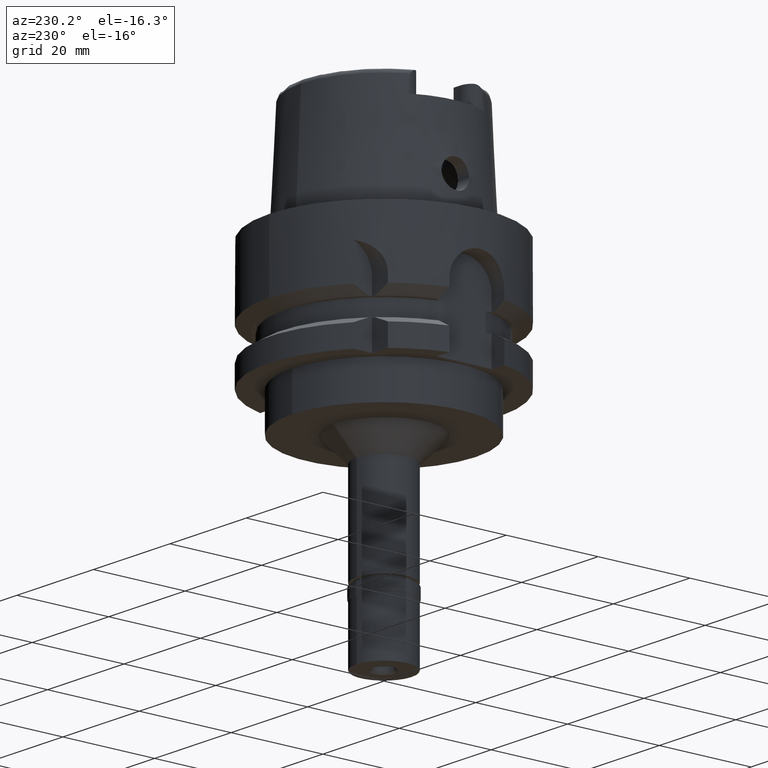
[diagram: clean part render]
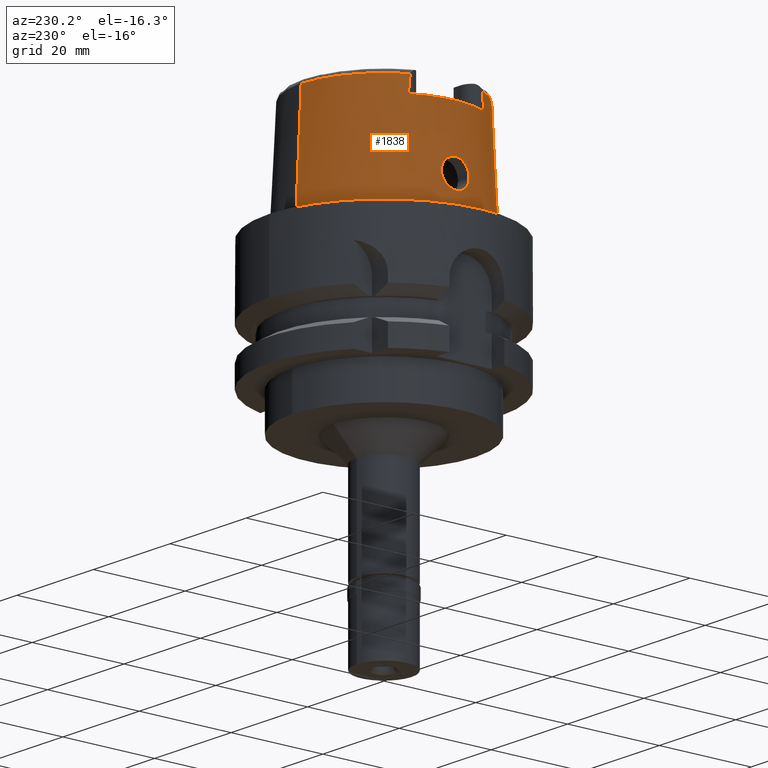
[diagram: same view with one face highlighted and labeled with its STEP entity id]
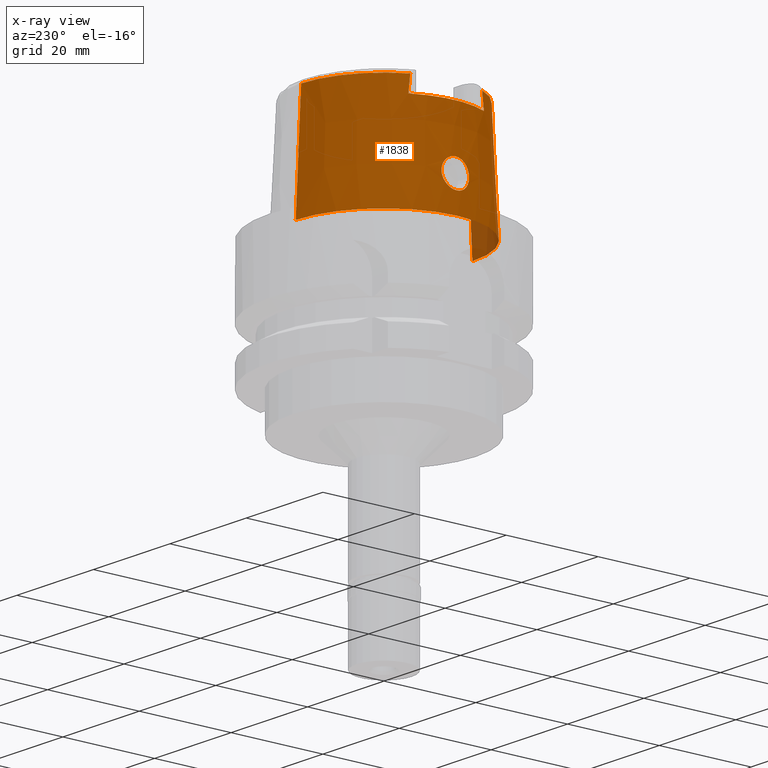
[diagram: x-ray of the same camera — body ghosted, the highlighted face saturated]
A machine part, auxiliary view. The second image highlights one B-rep face of the part: STEP entity #1838.
The next image is the same camera in x-ray: the body ghosted, the highlighted face saturated — about 3% of this face is hidden behind the body in this view.
In plain terms, the highlighted conical surface has half-angle 2.862 deg.
Its self-contained STEP definition (entity closure, byte-faithful):
#75 = CARTESIAN_POINT ( 'NONE',  ( -18.61521165853279314, 3.000504193512372186, 7.890410085220069369 ) ) ;
#148 = CARTESIAN_POINT ( 'NONE',  ( -18.68809610185432390, 2.921615254489645874, 6.711284630870899548 ) ) ;
#173 = EDGE_CURVE ( 'NONE', #1096, #3596, #1031, .T. ) ;
#246 = CARTESIAN_POINT ( 'NONE',  ( -16.26000066025000024, -7.966258492751999043, 22.87044372160000094 ) ) ;
#250 = DIRECTION ( 'NONE',  ( -0.0008255998758095713444, -0.9999996591923644429, 0.0000000000000000000 ) ) ;
#281 = VERTEX_POINT ( 'NONE', #2990 ) ;
#291 = CARTESIAN_POINT ( 'NONE',  ( -16.26000040461999774, 7.876275909827000099, 23.65715615373999725 ) ) ;
#331 = VECTOR ( 'NONE', #1618, 999.9999999999998863 ) ;
#405 = EDGE_CURVE ( 'NONE', #1096, #4775, #3557, .T. ) ;
#447 = CARTESIAN_POINT ( 'NONE',  ( -18.90931523670926850, 1.829648391470870328, 5.090021779530423451 ) ) ;
#450 = CIRCLE ( 'NONE', #4151, 19.24999954279000036 ) ;
#482 = CARTESIAN_POINT ( 'NONE',  ( 0.0000000000000000000, 18.04750486565000145, 24.04993752584000077 ) ) ;
#517 = CARTESIAN_POINT ( 'NONE',  ( -18.99432512546106722, 0.9562426627927177458, 4.649710631550868278 ) ) ;
#553 = CARTESIAN_POINT ( 'NONE',  ( -18.61621094040402369, -2.624791278749426748, 9.004930861501632577 ) ) ;
#558 = EDGE_CURVE ( 'NONE', #4340, #1352, #1783, .T. ) ;
#574 = FACE_OUTER_BOUND ( 'NONE', #3533, .T. ) ;
#579 = CARTESIAN_POINT ( 'NONE',  ( -18.76862302822648587, -2.623082563007824941, 5.991891537509923538 ) ) ;
#672 = B_SPLINE_CURVE_WITH_KNOTS ( 'NONE', 3,
 ( #938, #3648, #2055, #246, #3294, #1711 ),
 .UNSPECIFIED., .F., .F.,
 ( 4, 1, 1, 4 ),
 ( 0.0000000000000000000, 0.3333333333333000081, 0.6666666666667000474, 1.000000000000000000 ),
 .UNSPECIFIED. ) ;
#733 = CARTESIAN_POINT ( 'NONE',  ( -16.25999847872000004, -7.831027617251998585, 24.04990901149999871 ) ) ;
#738 = VERTEX_POINT ( 'NONE', #3095 ) ;
#862 = CARTESIAN_POINT ( 'NONE',  ( -19.02105854828567288, 0.3880979019703043043, 4.518930603039573057 ) ) ;
#868 = DIRECTION ( 'NONE',  ( 0.0000000000000000000, 1.000000000000000000, 0.0000000000000000000 ) ) ;
#883 = CARTESIAN_POINT ( 'NONE',  ( -19.02499995427999835, 7.258966459333998209E-14, 4.500000000000000000 ) ) ;
#927 = CARTESIAN_POINT ( 'NONE',  ( -18.63075387377248404, -2.403612166160960406, 9.338261276467978433 ) ) ;
#933 = CARTESIAN_POINT ( 'NONE',  ( -18.95067016965386486, 1.499015874560043482, 4.872009837907589791 ) ) ;
#938 = CARTESIAN_POINT ( 'NONE',  ( -16.25999962739999916, -8.231834791749999880, 20.50000000000000000 ) ) ;
#1011 = CARTESIAN_POINT ( 'NONE',  ( -18.68636725910725360, -1.513357400969332467, 10.12033624699732925 ) ) ;
#1031 = CIRCLE ( 'NONE', #4751, 18.04750486564999434 ) ;
#1055 = VERTEX_POINT ( 'NONE', #3788 ) ;
#1075 = ORIENTED_EDGE ( 'NONE', *, *, #3857, .T. ) ;
#1095 = ORIENTED_EDGE ( 'NONE', *, *, #173, .T. ) ;
#1096 = VERTEX_POINT ( 'NONE', #1392 ) ;
#1139 = B_SPLINE_CURVE_WITH_KNOTS ( 'NONE', 3,
 ( #883, #3452, #862, #2727, #517, #933, #447, #3531, #4255, #148, #1636, #75, #3146, #2326, #2699, #1655, #3831, #4224, #4301, #4619 ),
 .UNSPECIFIED., .F., .F.,
 ( 4, 2, 2, 2, 2, 2, 2, 2, 2, 4 ),
 ( 0.0000000000000000000, 0.06250000000000000000, 0.1250000000000000000, 0.2500000000000000000, 0.3750000000000000000, 0.5000000000000000000, 0.6250000000000000000, 0.7500000000000000000, 0.8750000000000000000, 1.000000000000000000 ),
 .UNSPECIFIED. ) ;
#1145 = CARTESIAN_POINT ( 'NONE',  ( -16.26000040461999774, 7.831014550392999318, 24.04994510191000145 ) ) ;
#1162 = ORIENTED_EDGE ( 'NONE', *, *, #4547, .T. ) ;
#1273 = DIRECTION ( 'NONE',  ( 0.0000000000000000000, 0.0000000000000000000, 1.000000000000000000 ) ) ;
#1309 = CARTESIAN_POINT ( 'NONE',  ( -18.72500050292000040, 0.0000000000000000000, 10.50000000000000000 ) ) ;
#1328 = EDGE_CURVE ( 'NONE', #3913, #738, #1592, .T. ) ;
#1335 = DIRECTION ( 'NONE',  ( 0.0000000000000000000, 0.0000000000000000000, -1.000000000000000000 ) ) ;
#1349 = DIRECTION ( 'NONE',  ( 0.0000000000000000000, 0.0000000000000000000, -1.000000000000000000 ) ) ;
#1352 = VERTEX_POINT ( 'NONE', #2817 ) ;
#1392 = CARTESIAN_POINT ( 'NONE',  ( 0.0000000000000000000, -18.04750486565000145, 24.04993752584000077 ) ) ;
#1570 = EDGE_LOOP ( 'NONE', ( #1075, #1162 ) ) ;
#1592 = CIRCLE ( 'NONE', #3002, 18.22500141733000589 ) ;
#1618 = DIRECTION ( 'NONE',  ( 0.0000000000000000000, -0.04993752584486958745, -0.9987523434327917338 ) ) ;
#1636 = CARTESIAN_POINT ( 'NONE',  ( -18.65520956760335380, 2.999493005974039228, 7.103833568902708784 ) ) ;
#1648 = CARTESIAN_POINT ( 'NONE',  ( -16.26000040461999774, 7.831014550392999318, 24.04994510191000145 ) ) ;
#1653 = CARTESIAN_POINT ( 'NONE',  ( 0.0000000000000000000, 0.0000000000000000000, 20.50000000000000000 ) ) ;
#1655 = CARTESIAN_POINT ( 'NONE',  ( -18.66606290257130496, 1.847339601377248952, 9.896261648899583818 ) ) ;
#1672 = CARTESIAN_POINT ( 'NONE',  ( -19.00870477311879725, -0.7795657166047459397, 4.576435979198842929 ) ) ;
#1695 = DIRECTION ( 'NONE',  ( 0.0000000000000000000, -1.000000000000000000, 0.0000000000000000000 ) ) ;
#1699 = CARTESIAN_POINT ( 'NONE',  ( -18.65494599480154392, -2.999800631414130780, 7.108060188906529575 ) ) ;
#1711 = CARTESIAN_POINT ( 'NONE',  ( -16.25999847872000004, -7.831027617251998585, 24.04990901149999871 ) ) ;
#1719 = CARTESIAN_POINT ( 'NONE',  ( -18.66617168065118548, -1.845566687270967288, 9.897830871020845578 ) ) ;
#1777 = CARTESIAN_POINT ( 'NONE',  ( -16.26000000000000156, 8.231833128876001382, 20.50000000000000000 ) ) ;
#1783 = LINE ( 'NONE', #4743, #3318 ) ;
#1838 = ADVANCED_FACE ( 'NONE', ( #574, #2810 ), #3157, .T. ) ;
#1868 = CARTESIAN_POINT ( 'NONE',  ( -16.26000158539999774, 8.187979356550998844, 20.89609208375999927 ) ) ;
#1880 = AXIS2_PLACEMENT_3D ( 'NONE', #2062, #1349, #1695 ) ;
#1961 = ORIENTED_EDGE ( 'NONE', *, *, #2191, .F. ) ;
#2055 = CARTESIAN_POINT ( 'NONE',  ( -16.25999997104000272, -8.099879603683000084, 21.68713993014999986 ) ) ;
#2062 = CARTESIAN_POINT ( 'NONE',  ( 0.0000000000000000000, 0.0000000000000000000, 12.02496876291999861 ) ) ;
#2066 = CARTESIAN_POINT ( 'NONE',  ( -18.61534743515779411, -3.000198457004748853, 7.888700898811171314 ) ) ;
#2107 = EDGE_CURVE ( 'NONE', #1352, #4775, #450, .T. ) ;
#2110 = CARTESIAN_POINT ( 'NONE',  ( -18.94979033133833113, -1.507713449375616799, 4.876655439291137206 ) ) ;
#2140 = ORIENTED_EDGE ( 'NONE', *, *, #1328, .T. ) ;
#2191 = EDGE_CURVE ( 'NONE', #3913, #3596, #672, .T. ) ;
#2326 = CARTESIAN_POINT ( 'NONE',  ( -18.61631339318921619, 2.622856991843211638, 9.008393197570976341 ) ) ;
#2438 = CARTESIAN_POINT ( 'NONE',  ( -16.25999962739999916, -8.231834791749999880, 20.50000000000000000 ) ) ;
#2458 = DIRECTION ( 'NONE',  ( -0.8921810005753487705, -0.4516780515061248891, 0.0000000000000000000 ) ) ;
#2478 = CARTESIAN_POINT ( 'NONE',  ( -18.90749156084745053, -1.843026855301739042, 5.100132021064989196 ) ) ;
#2497 = CARTESIAN_POINT ( 'NONE',  ( -19.02499995427610457, -0.3906497570035861178, 4.499999999999798383 ) ) ;
#2542 = CARTESIAN_POINT ( 'NONE',  ( 0.0000000000000000000, 0.0000000000000000000, 24.04993752584000077 ) ) ;
#2699 = CARTESIAN_POINT ( 'NONE',  ( -18.63074150360520775, 2.403748526159015686, 9.337914465138142717 ) ) ;
#2727 = CARTESIAN_POINT ( 'NONE',  ( -19.00562928286402453, 0.7708435234469115382, 4.594181927763025364 ) ) ;
#2788 = CARTESIAN_POINT ( 'NONE',  ( -18.72500050292148543, -0.3930681750101744920, 10.50000000000007638 ) ) ;
#2810 = FACE_BOUND ( 'NONE', #1570, .T. ) ;
#2813 = CARTESIAN_POINT ( 'NONE',  ( -18.71606359552192700, -0.7826442056608654552, 10.42295787620839143 ) ) ;
#2817 = CARTESIAN_POINT ( 'NONE',  ( 0.0000000000000000000, 19.24999954279000036, -4.547473508865000658E-13 ) ) ;
#2836 = EDGE_CURVE ( 'NONE', #3039, #738, #3248, .T. ) ;
#2990 = CARTESIAN_POINT ( 'NONE',  ( -18.72500050292000040, 0.0000000000000000000, 10.50000000000000000 ) ) ;
#3002 = AXIS2_PLACEMENT_3D ( 'NONE', #1653, #1335, #2458 ) ;
#3039 = VERTEX_POINT ( 'NONE', #1648 ) ;
#3095 = CARTESIAN_POINT ( 'NONE',  ( -16.26000000000000156, 8.231833128876001382, 20.50000000000000000 ) ) ;
#3146 = CARTESIAN_POINT ( 'NONE',  ( -18.60835901575721962, 2.923418430868722773, 8.279880613901511310 ) ) ;
#3157 = CONICAL_SURFACE ( 'NONE', #1880, 18.64875220421999913, 0.04995830450907576964 ) ;
#3200 = ORIENTED_EDGE ( 'NONE', *, *, #2836, .F. ) ;
#3221 = DIRECTION ( 'NONE',  ( 0.0000000000000000000, 0.04993752584486958745, -0.9987523434327917338 ) ) ;
#3230 = CARTESIAN_POINT ( 'NONE',  ( -18.60838970063828413, -2.924199547067774851, 8.276757430511484159 ) ) ;
#3248 = B_SPLINE_CURVE_WITH_KNOTS ( 'NONE', 3,
 ( #1145, #291, #4508, #4134, #1868, #1777 ),
 .UNSPECIFIED., .F., .F.,
 ( 4, 1, 1, 4 ),
 ( 0.0000000000000000000, 0.3333333333333000081, 0.6666666666667000474, 1.000000000000000000 ),
 .UNSPECIFIED. ) ;
#3294 = CARTESIAN_POINT ( 'NONE',  ( -16.25999847872000004, -7.876284608627000416, 23.65715736873999830 ) ) ;
#3318 = VECTOR ( 'NONE', #3221, 999.9999999999998863 ) ;
#3452 = CARTESIAN_POINT ( 'NONE',  ( -19.02499995427610457, 0.1944838372833270768, 4.499999999999798383 ) ) ;
#3531 = CARTESIAN_POINT ( 'NONE',  ( -18.81845342333462057, 2.391666453637501633, 5.646118425473034996 ) ) ;
#3533 = EDGE_LOOP ( 'NONE', ( #3200, #3773, #4101, #3585, #3851, #1095, #1961, #2140 ) ) ;
#3553 = DIRECTION ( 'NONE',  ( -0.9009556354130529021, 0.4339112155930774928, 0.0000000000000000000 ) ) ;
#3557 = LINE ( 'NONE', #4697, #331 ) ;
#3585 = ORIENTED_EDGE ( 'NONE', *, *, #2107, .T. ) ;
#3596 = VERTEX_POINT ( 'NONE', #733 ) ;
#3634 = DIRECTION ( 'NONE',  ( 0.0000000000000000000, 0.0000000000000000000, -1.000000000000000000 ) ) ;
#3648 = CARTESIAN_POINT ( 'NONE',  ( -16.25999962739999916, -8.187990026059001281, 20.89607519730999741 ) ) ;
#3697 = B_SPLINE_CURVE_WITH_KNOTS ( 'NONE', 3,
 ( #1309, #2788, #2813, #1011, #1719, #927, #553, #3230, #2066, #1699, #4781, #579, #3964, #2478, #2110, #1672, #2497, #4711 ),
 .UNSPECIFIED., .F., .F.,
 ( 4, 2, 2, 2, 2, 2, 2, 2, 4 ),
 ( 0.0000000000000000000, 0.1250000000000001110, 0.2500000000000002220, 0.3750000000000003331, 0.5000000000000004441, 0.6250000000000003331, 0.7500000000000002220, 0.8750000000000001110, 1.000000000000000000 ),
 .UNSPECIFIED. ) ;
#3773 = ORIENTED_EDGE ( 'NONE', *, *, #3844, .T. ) ;
#3788 = CARTESIAN_POINT ( 'NONE',  ( -19.02499995427999835, 7.258966459333998209E-14, 4.500000000000000000 ) ) ;
#3831 = CARTESIAN_POINT ( 'NONE',  ( -18.68623128378096609, 1.515970932754483025, 10.11879753375873037 ) ) ;
#3844 = EDGE_CURVE ( 'NONE', #3039, #4340, #4704, .T. ) ;
#3851 = ORIENTED_EDGE ( 'NONE', *, *, #405, .F. ) ;
#3857 = EDGE_CURVE ( 'NONE', #1055, #281, #1139, .T. ) ;
#3913 = VERTEX_POINT ( 'NONE', #2438 ) ;
#3964 = CARTESIAN_POINT ( 'NONE',  ( -18.81630333429857771, -2.402769269209611647, 5.660385142971150252 ) ) ;
#4101 = ORIENTED_EDGE ( 'NONE', *, *, #558, .T. ) ;
#4134 = CARTESIAN_POINT ( 'NONE',  ( -16.25999931409999988, 8.099893749601998039, 21.68718078638000080 ) ) ;
#4151 = AXIS2_PLACEMENT_3D ( 'NONE', #4261, #1273, #868 ) ;
#4224 = CARTESIAN_POINT ( 'NONE',  ( -18.71598416553824862, 0.7853924271573787808, 10.42221850693087681 ) ) ;
#4255 = CARTESIAN_POINT ( 'NONE',  ( -18.77055619783420326, 2.614874352756201503, 5.976803230990258342 ) ) ;
#4261 = CARTESIAN_POINT ( 'NONE',  ( 0.0000000000000000000, 0.0000000000000000000, -4.547473508865000658E-13 ) ) ;
#4277 = DIRECTION ( 'NONE',  ( 0.0000000000000000000, 0.0000000000000000000, -1.000000000000000000 ) ) ;
#4301 = CARTESIAN_POINT ( 'NONE',  ( -18.72500050292148543, 0.3943523808341358183, 10.50000000000007461 ) ) ;
#4340 = VERTEX_POINT ( 'NONE', #482 ) ;
#4462 = AXIS2_PLACEMENT_3D ( 'NONE', #4646, #4277, #3553 ) ;
#4508 = CARTESIAN_POINT ( 'NONE',  ( -16.26000002255999988, 7.966271241221000388, 22.87049542185000206 ) ) ;
#4547 = EDGE_CURVE ( 'NONE', #281, #1055, #3697, .T. ) ;
#4619 = CARTESIAN_POINT ( 'NONE',  ( -18.72500050292000040, 0.0000000000000000000, 10.50000000000000000 ) ) ;
#4646 = CARTESIAN_POINT ( 'NONE',  ( 0.0000000000000000000, 0.0000000000000000000, 24.04993752584000077 ) ) ;
#4675 = CARTESIAN_POINT ( 'NONE',  ( 0.0000000000000000000, -19.24999954279000036, -4.547473508865000658E-13 ) ) ;
#4697 = CARTESIAN_POINT ( 'NONE',  ( 0.0000000000000000000, -18.04750486565000145, 24.04993752584000077 ) ) ;
#4704 = CIRCLE ( 'NONE', #4462, 18.04750486565000145 ) ;
#4711 = CARTESIAN_POINT ( 'NONE',  ( -19.02499995427999835, 7.258966459333998209E-14, 4.500000000000000000 ) ) ;
#4743 = CARTESIAN_POINT ( 'NONE',  ( 0.0000000000000000000, 18.04750486565000145, 24.04993752584000077 ) ) ;
#4751 = AXIS2_PLACEMENT_3D ( 'NONE', #2542, #3634, #250 ) ;
#4775 = VERTEX_POINT ( 'NONE', #4675 ) ;
#4781 = CARTESIAN_POINT ( 'NONE',  ( -18.68728129097442547, -2.923623338453856579, 6.720660806491174810 ) ) ;